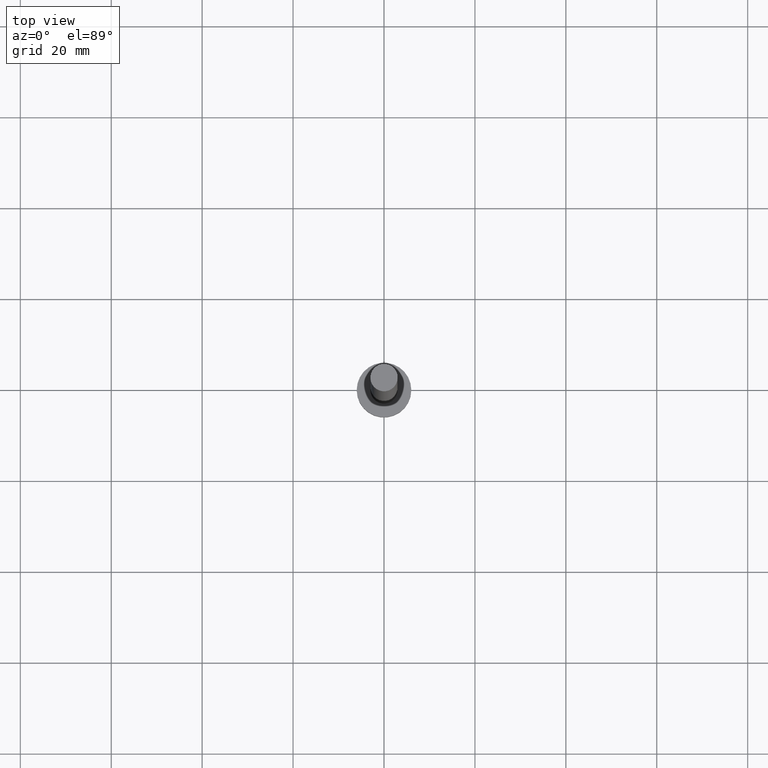
[diagram: clean part render]
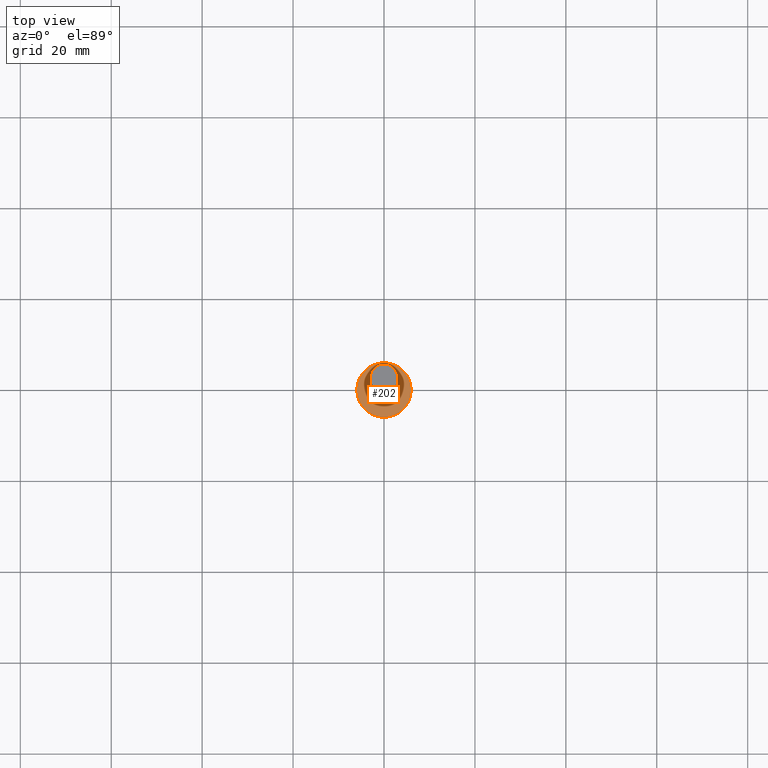
[diagram: same view with one face highlighted and labeled with its STEP entity id]
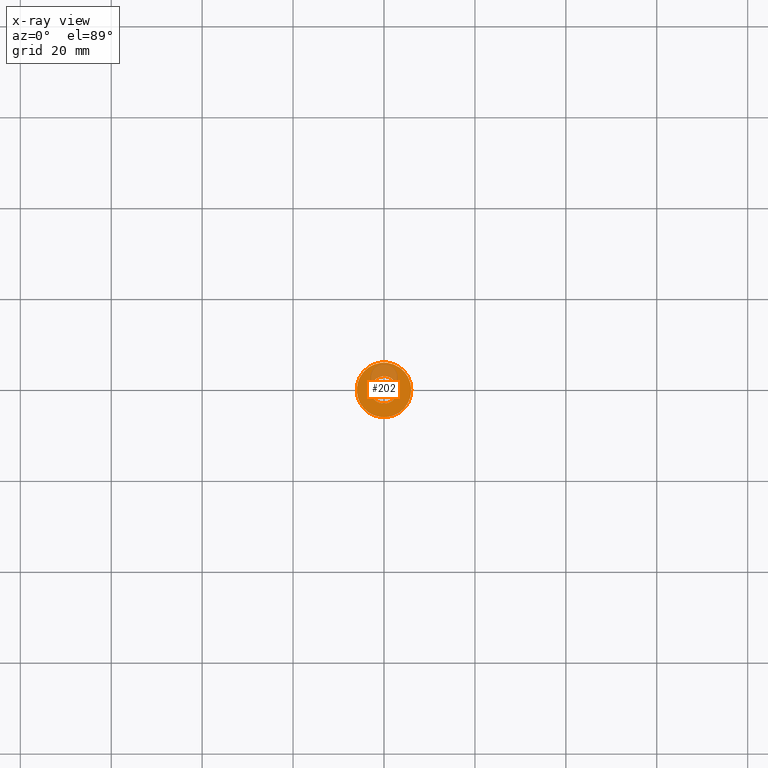
[diagram: x-ray of the same camera — body ghosted, the highlighted face saturated]
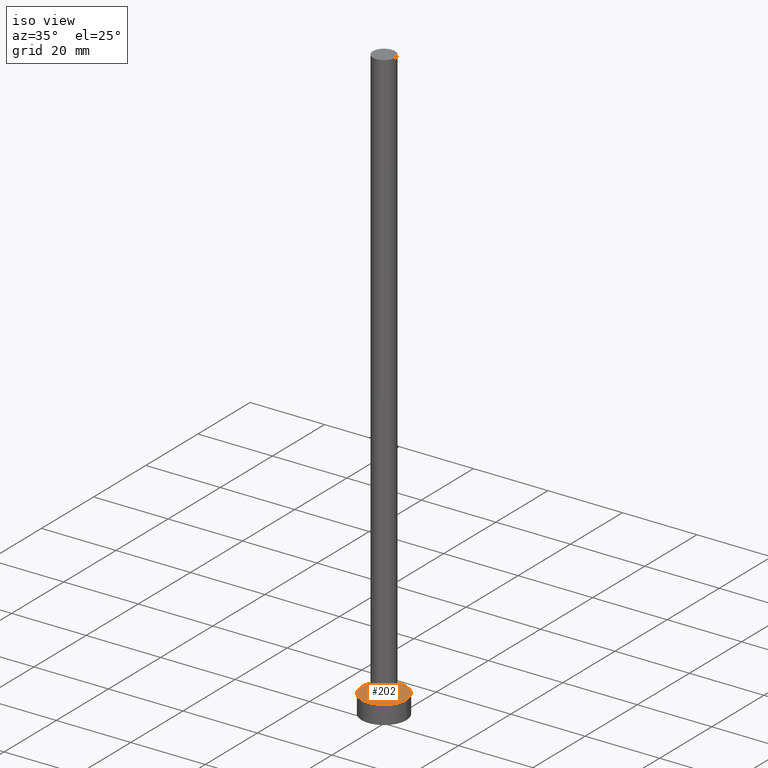
[diagram: same view with one face highlighted and labeled with its STEP entity id]
A machine part, top view. The second image highlights one B-rep face of the part: STEP entity #202.
The next image is the same camera in x-ray: the body ghosted, the highlighted face saturated — about 19% of this face is hidden behind the body in this view.
A second angle (iso view) of the same face is appended — the face is thin or edge-on in the first view.
In plain terms, the highlighted planar face has unit normal (0, 0, 1).
Its self-contained STEP definition (entity closure, byte-faithful):
#10 = CARTESIAN_POINT ( 'NONE',  ( 0.000000000000000000, 0.000000000000000000, 5.000000000000000000 ) ) ;
#11 = AXIS2_PLACEMENT_3D ( 'NONE', #43, #173, #245 ) ;
#12 = DIRECTION ( 'NONE',  ( 1.000000000000000000, 0.000000000000000000, 0.000000000000000000 ) ) ;
#21 = VERTEX_POINT ( 'NONE', #127 ) ;
#43 = CARTESIAN_POINT ( 'NONE',  ( 0.000000000000000000, 0.000000000000000000, 5.000000000000000000 ) ) ;
#46 = AXIS2_PLACEMENT_3D ( 'NONE', #108, #48, #190 ) ;
#48 = DIRECTION ( 'NONE',  ( 0.000000000000000000, 0.000000000000000000, 1.000000000000000000 ) ) ;
#51 = CIRCLE ( 'NONE', #128, 6.000000000000000888 ) ;
#53 = EDGE_CURVE ( 'NONE', #82, #103, #51, .T. ) ;
#60 = EDGE_LOOP ( 'NONE', ( #169, #171 ) ) ;
#63 = ORIENTED_EDGE ( 'NONE', *, *, #247, .F. ) ;
#65 = DIRECTION ( 'NONE',  ( 0.000000000000000000, 0.000000000000000000, 1.000000000000000000 ) ) ;
#68 = CARTESIAN_POINT ( 'NONE',  ( 6.000000000000000888, 7.347880794884120722E-16, 5.000000000000000000 ) ) ;
#69 = CIRCLE ( 'NONE', #46, 6.000000000000000888 ) ;
#82 = VERTEX_POINT ( 'NONE', #251 ) ;
#89 = PLANE ( 'NONE',  #223 ) ;
#103 = VERTEX_POINT ( 'NONE', #68 ) ;
#107 = EDGE_CURVE ( 'NONE', #103, #82, #69, .T. ) ;
#108 = CARTESIAN_POINT ( 'NONE',  ( 0.000000000000000000, 0.000000000000000000, 5.000000000000000000 ) ) ;
#110 = CARTESIAN_POINT ( 'NONE',  ( -3.000000000000000444, 0.000000000000000000, 5.000000000000000000 ) ) ;
#112 = FACE_BOUND ( 'NONE', #241, .T. ) ;
#113 = CARTESIAN_POINT ( 'NONE',  ( 0.000000000000000000, 0.000000000000000000, 5.000000000000000000 ) ) ;
#122 = CIRCLE ( 'NONE', #11, 3.000000000000000444 ) ;
#127 = CARTESIAN_POINT ( 'NONE',  ( 3.000000000000000444, 3.673940397442060361E-16, 5.000000000000000000 ) ) ;
#128 = AXIS2_PLACEMENT_3D ( 'NONE', #10, #65, #12 ) ;
#138 = DIRECTION ( 'NONE',  ( 0.000000000000000000, 0.000000000000000000, 1.000000000000000000 ) ) ;
#168 = VERTEX_POINT ( 'NONE', #110 ) ;
#169 = ORIENTED_EDGE ( 'NONE', *, *, #53, .T. ) ;
#171 = ORIENTED_EDGE ( 'NONE', *, *, #107, .T. ) ;
#173 = DIRECTION ( 'NONE',  ( 0.000000000000000000, 0.000000000000000000, 1.000000000000000000 ) ) ;
#177 = DIRECTION ( 'NONE',  ( 1.000000000000000000, 0.000000000000000000, 0.000000000000000000 ) ) ;
#178 = CARTESIAN_POINT ( 'NONE',  ( 0.000000000000000000, 0.000000000000000000, 5.000000000000000000 ) ) ;
#190 = DIRECTION ( 'NONE',  ( 1.000000000000000000, 0.000000000000000000, 0.000000000000000000 ) ) ;
#192 = DIRECTION ( 'NONE',  ( 1.000000000000000000, 0.000000000000000000, -0.000000000000000000 ) ) ;
#199 = EDGE_CURVE ( 'NONE', #168, #21, #232, .T. ) ;
#202 = ADVANCED_FACE ( 'NONE', ( #112, #212 ), #89, .T. ) ;
#205 = AXIS2_PLACEMENT_3D ( 'NONE', #178, #138, #177 ) ;
#212 = FACE_OUTER_BOUND ( 'NONE', #60, .T. ) ;
#221 = ORIENTED_EDGE ( 'NONE', *, *, #199, .F. ) ;
#223 = AXIS2_PLACEMENT_3D ( 'NONE', #113, #252, #192 ) ;
#232 = CIRCLE ( 'NONE', #205, 3.000000000000000444 ) ;
#241 = EDGE_LOOP ( 'NONE', ( #221, #63 ) ) ;
#245 = DIRECTION ( 'NONE',  ( 1.000000000000000000, 0.000000000000000000, 0.000000000000000000 ) ) ;
#247 = EDGE_CURVE ( 'NONE', #21, #168, #122, .T. ) ;
#251 = CARTESIAN_POINT ( 'NONE',  ( -6.000000000000000888, 0.000000000000000000, 5.000000000000000000 ) ) ;
#252 = DIRECTION ( 'NONE',  ( 0.000000000000000000, 0.000000000000000000, 1.000000000000000000 ) ) ;